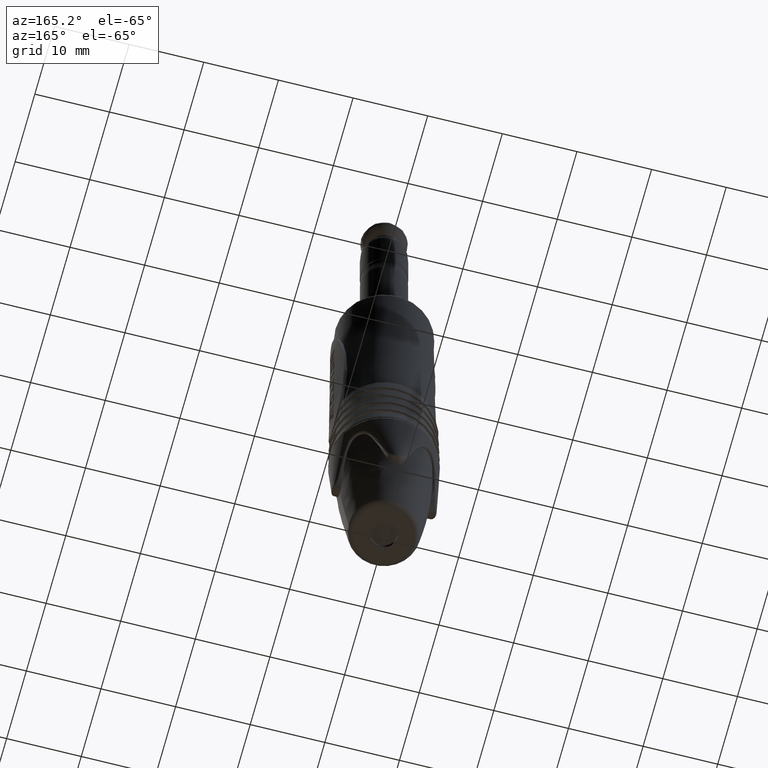
[diagram: clean part render]
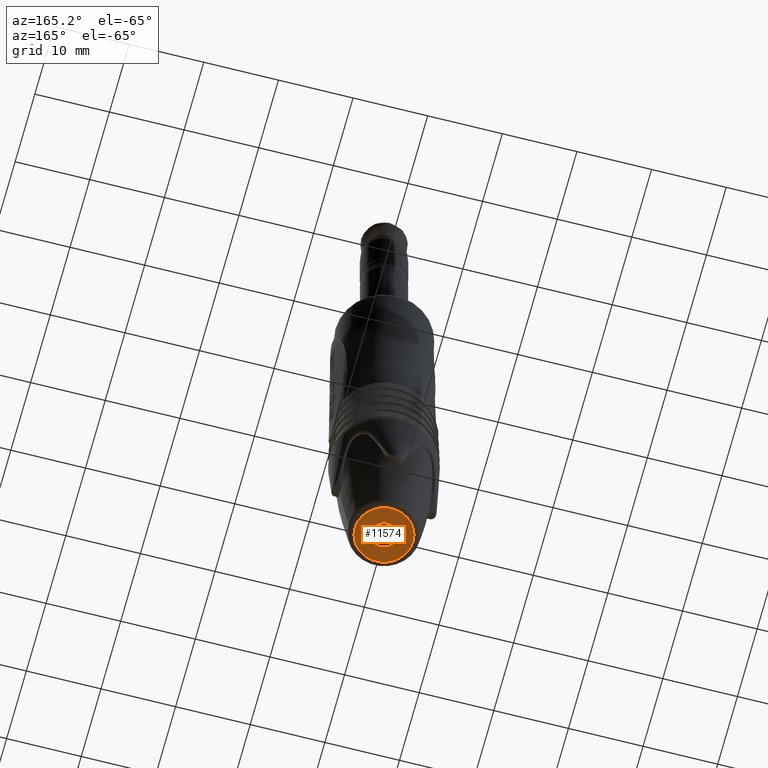
[diagram: same view with one face highlighted and labeled with its STEP entity id]
A machine part, auxiliary view. The second image highlights one B-rep face of the part: STEP entity #11574.
In plain terms, the highlighted planar face has unit normal (0, 0, -1).
Its self-contained STEP definition (entity closure, byte-faithful):
#2339=CARTESIAN_POINT('',(0.E0,0.E0,-6.199E1));
#2340=DIRECTION('',(0.E0,0.E0,-1.E0));
#2341=DIRECTION('',(-1.E0,0.E0,0.E0));
#2342=AXIS2_PLACEMENT_3D('',#2339,#2340,#2341);
#2354=CARTESIAN_POINT('',(0.E0,0.E0,-6.199E1));
#2355=DIRECTION('',(0.E0,0.E0,1.E0));
#2356=DIRECTION('',(-1.E0,0.E0,0.E0));
#2357=AXIS2_PLACEMENT_3D('',#2354,#2355,#2356);
#2359=CARTESIAN_POINT('',(0.E0,0.E0,-6.199E1));
#2360=DIRECTION('',(0.E0,0.E0,1.E0));
#2361=DIRECTION('',(-1.E0,0.E0,0.E0));
#2362=AXIS2_PLACEMENT_3D('',#2359,#2360,#2361);
#2364=CARTESIAN_POINT('',(0.E0,0.E0,-6.199E1));
#2365=DIRECTION('',(0.E0,0.E0,-1.E0));
#2366=DIRECTION('',(-1.E0,0.E0,0.E0));
#2367=AXIS2_PLACEMENT_3D('',#2364,#2365,#2366);
#5812=CARTESIAN_POINT('',(-3.890616094111E0,0.E0,-6.199E1));
#5814=VERTEX_POINT('',#5812);
#5816=CARTESIAN_POINT('',(3.890616094111E0,0.E0,-6.199E1));
#5818=VERTEX_POINT('',#5816);
#5820=CARTESIAN_POINT('',(-1.75E0,0.E0,-6.199E1));
#5821=CARTESIAN_POINT('',(1.75E0,0.E0,-6.199E1));
#5822=VERTEX_POINT('',#5820);
#5823=VERTEX_POINT('',#5821);
#11559=CARTESIAN_POINT('',(0.E0,0.E0,-6.199E1));
#11560=DIRECTION('',(0.E0,0.E0,-1.E0));
#11561=DIRECTION('',(1.E0,0.E0,0.E0));
#11562=AXIS2_PLACEMENT_3D('',#11559,#11560,#11561);
#11563=PLANE('',#11562);
#11564=ORIENTED_EDGE('',*,*,#11538,.F.);
#11565=ORIENTED_EDGE('',*,*,#11554,.T.);
#11566=EDGE_LOOP('',(#11564,#11565));
#11567=FACE_OUTER_BOUND('',#11566,.F.);
#11569=ORIENTED_EDGE('',*,*,#11568,.F.);
#11571=ORIENTED_EDGE('',*,*,#11570,.T.);
#11572=EDGE_LOOP('',(#11569,#11571));
#11573=FACE_BOUND('',#11572,.F.);
#11574=ADVANCED_FACE('',(#11567,#11573),#11563,.T.);
#2343=CIRCLE('',#2342,3.890616094111E0);
#2358=CIRCLE('',#2357,3.890616094111E0);
#2363=CIRCLE('',#2362,1.75E0);
#2368=CIRCLE('',#2367,1.75E0);
#11538=EDGE_CURVE('',#5814,#5818,#2343,.T.);
#11554=EDGE_CURVE('',#5814,#5818,#2358,.T.);
#11568=EDGE_CURVE('',#5822,#5823,#2363,.T.);
#11570=EDGE_CURVE('',#5822,#5823,#2368,.T.);